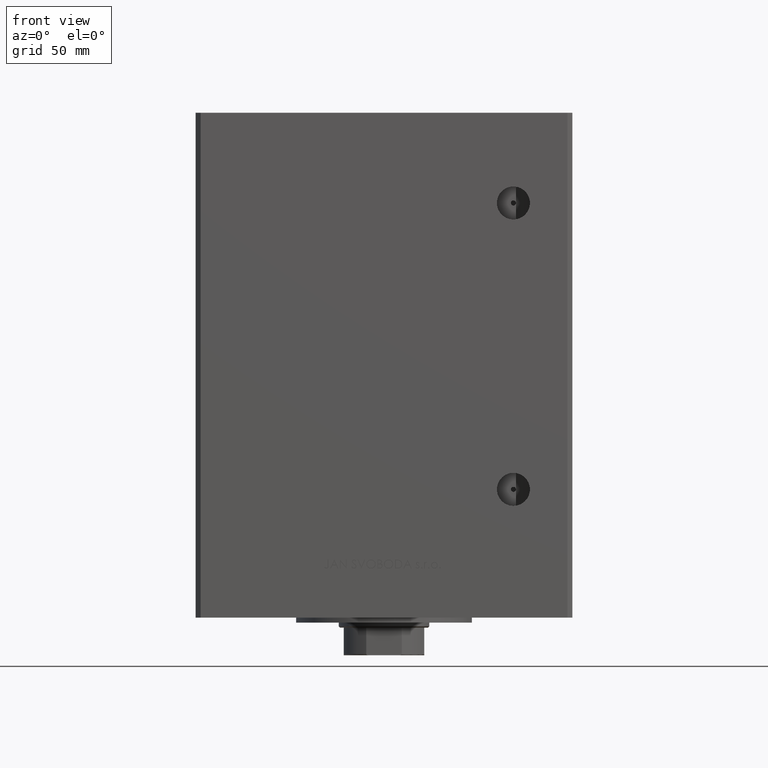
[diagram: clean part render]
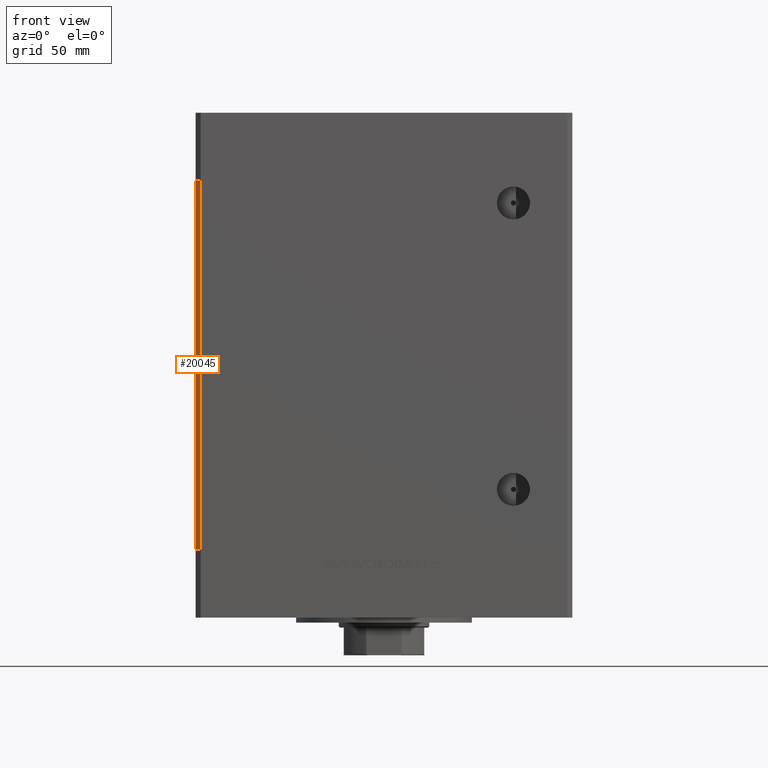
[diagram: same view with one face highlighted and labeled with its STEP entity id]
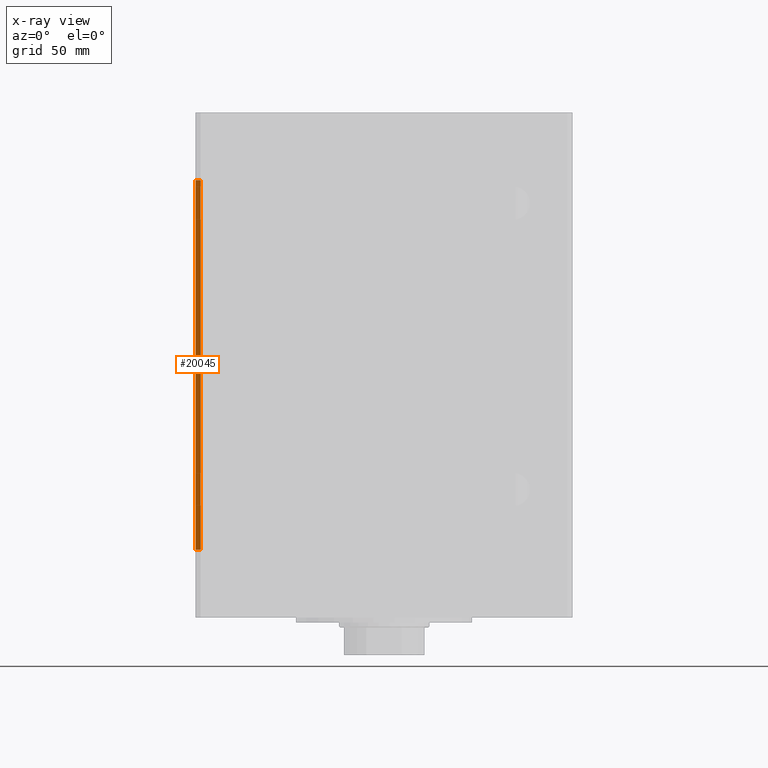
[diagram: x-ray of the same camera — body ghosted, the highlighted face saturated]
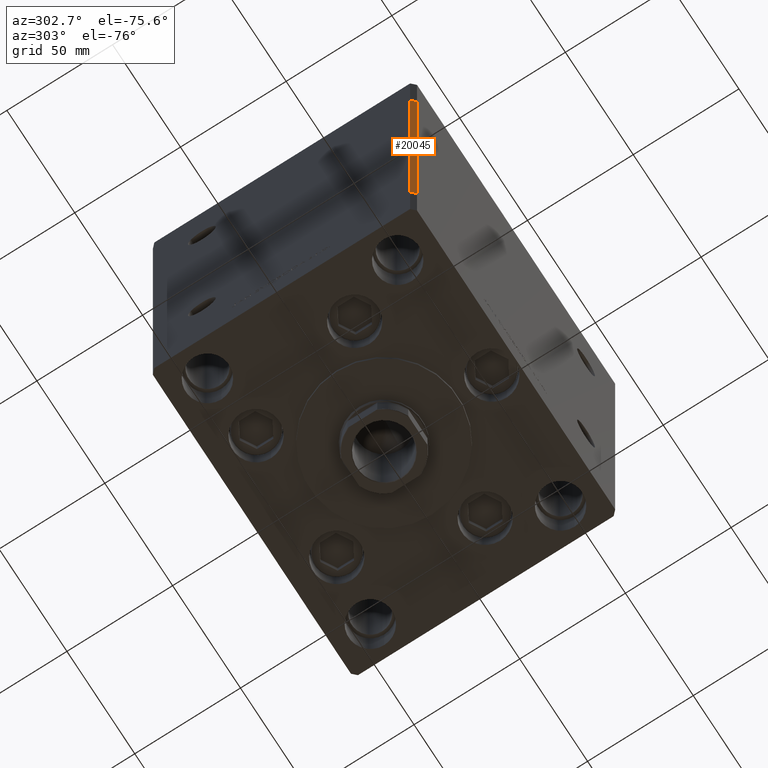
[diagram: same view with one face highlighted and labeled with its STEP entity id]
A machine part, front view. The second image highlights one B-rep face of the part: STEP entity #20045.
The next image is the same camera in x-ray: the body ghosted, the highlighted face saturated — about 0% of this face is hidden behind the body in this view.
A second angle (auxiliary view) of the same face is appended — the face is thin or edge-on in the first view.
In plain terms, the highlighted planar face has unit normal (0.7071, 0.7071, 0).
Its self-contained STEP definition (entity closure, byte-faithful):
#1433 = CARTESIAN_POINT ( 'NONE',  ( -74.99999999999998579, -60.50000000000000000, 147.0000000000000000 ) ) ;
#2466 = VECTOR ( 'NONE', #19844, 1000.000000000000000 ) ;
#2849 = VERTEX_POINT ( 'NONE', #25795 ) ;
#4211 = ORIENTED_EDGE ( 'NONE', *, *, #45840, .F. ) ;
#5546 = LINE ( 'NONE', #25650, #22016 ) ;
#8047 = ORIENTED_EDGE ( 'NONE', *, *, #17658, .F. ) ;
#11094 = DIRECTION ( 'NONE',  ( 0.7071067811865474617, -0.7071067811865474617, 0.000000000000000000 ) ) ;
#12152 = CARTESIAN_POINT ( 'NONE',  ( -74.99999999999998579, -60.50000000000000000, 147.0000000000000000 ) ) ;
#12923 = ORIENTED_EDGE ( 'NONE', *, *, #13179, .T. ) ;
#13179 = EDGE_CURVE ( 'NONE', #34455, #41994, #5546, .T. ) ;
#13273 = LINE ( 'NONE', #40464, #30796 ) ;
#17337 = CARTESIAN_POINT ( 'NONE',  ( -74.99999999999998579, -60.50000000000000000, 0.000000000000000000 ) ) ;
#17658 = EDGE_CURVE ( 'NONE', #34455, #2849, #38282, .T. ) ;
#19844 = DIRECTION ( 'NONE',  ( -0.000000000000000000, -0.000000000000000000, -1.000000000000000000 ) ) ;
#20045 = ADVANCED_FACE ( 'NONE', ( #43910 ), #24346, .F. ) ;
#21155 = DIRECTION ( 'NONE',  ( 0.7071067811865474617, -0.7071067811865474617, 0.000000000000000000 ) ) ;
#22016 = VECTOR ( 'NONE', #41150, 1000.000000000000000 ) ;
#24346 = PLANE ( 'NONE',  #44865 ) ;
#25650 = CARTESIAN_POINT ( 'NONE',  ( -74.99999999999998579, -60.50000000000000000, 147.0000000000000000 ) ) ;
#25795 = CARTESIAN_POINT ( 'NONE',  ( -72.99999999999998579, -62.50000000000000000, 147.0000000000000000 ) ) ;
#28951 = ORIENTED_EDGE ( 'NONE', *, *, #43017, .T. ) ;
#30796 = VECTOR ( 'NONE', #21155, 1000.000000000000114 ) ;
#31051 = LINE ( 'NONE', #43221, #2466 ) ;
#34064 = EDGE_LOOP ( 'NONE', ( #28951, #4211, #8047, #12923 ) ) ;
#34455 = VERTEX_POINT ( 'NONE', #1433 ) ;
#38282 = LINE ( 'NONE', #50207, #47228 ) ;
#39595 = CARTESIAN_POINT ( 'NONE',  ( -72.99999999999998579, -62.50000000000000000, 0.000000000000000000 ) ) ;
#39791 = VERTEX_POINT ( 'NONE', #39595 ) ;
#39839 = DIRECTION ( 'NONE',  ( 0.7071067811865475727, 0.7071067811865475727, -0.000000000000000000 ) ) ;
#40464 = CARTESIAN_POINT ( 'NONE',  ( -74.99999999999998579, -60.50000000000000000, 0.000000000000000000 ) ) ;
#41150 = DIRECTION ( 'NONE',  ( -0.000000000000000000, -0.000000000000000000, -1.000000000000000000 ) ) ;
#41994 = VERTEX_POINT ( 'NONE', #17337 ) ;
#43017 = EDGE_CURVE ( 'NONE', #41994, #39791, #13273, .T. ) ;
#43221 = CARTESIAN_POINT ( 'NONE',  ( -72.99999999999998579, -62.50000000000000000, 147.0000000000000000 ) ) ;
#43910 = FACE_OUTER_BOUND ( 'NONE', #34064, .T. ) ;
#44865 = AXIS2_PLACEMENT_3D ( 'NONE', #12152, #39839, #47226 ) ;
#45840 = EDGE_CURVE ( 'NONE', #2849, #39791, #31051, .T. ) ;
#47226 = DIRECTION ( 'NONE',  ( -0.7071067811865474617, 0.7071067811865474617, 0.000000000000000000 ) ) ;
#47228 = VECTOR ( 'NONE', #11094, 1000.000000000000114 ) ;
#50207 = CARTESIAN_POINT ( 'NONE',  ( -74.99999999999998579, -60.50000000000000000, 147.0000000000000000 ) ) ;